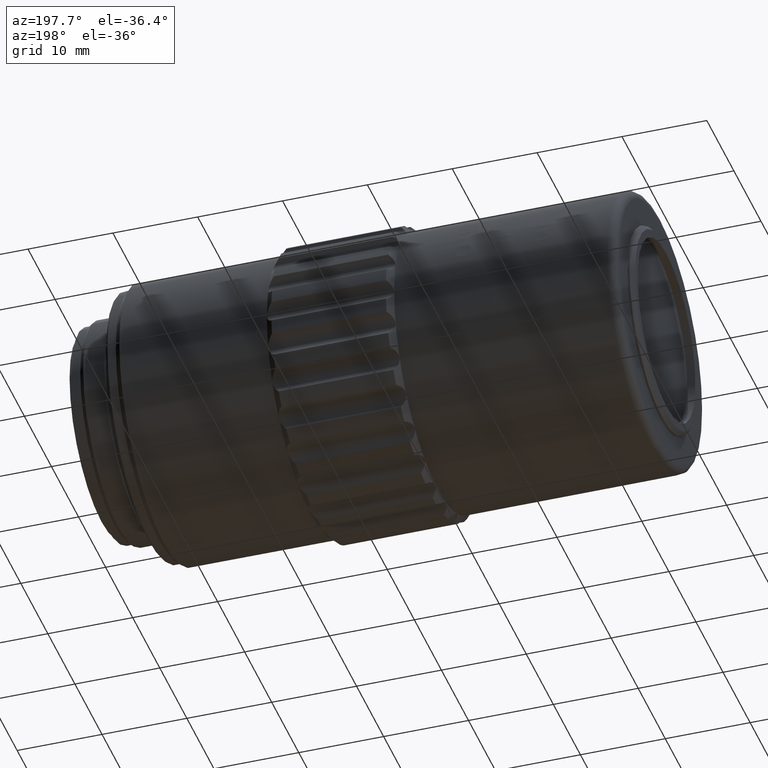
[diagram: clean part render]
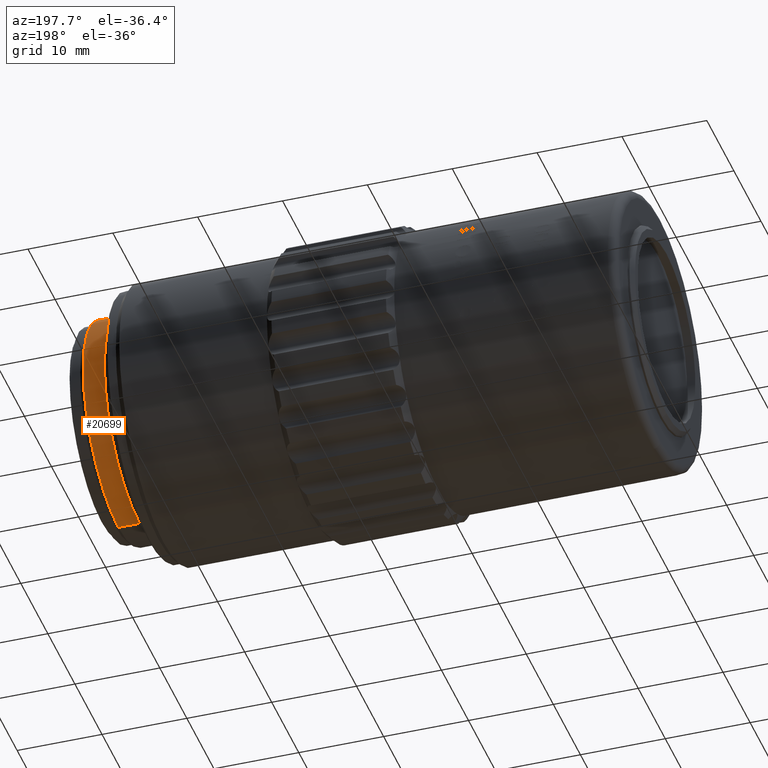
[diagram: same view with one face highlighted and labeled with its STEP entity id]
A machine part, auxiliary view. The second image highlights one B-rep face of the part: STEP entity #20699.
In plain terms, the highlighted cylindrical surface (partial cylindrical patch) has radius 13 mm, axis along (-1, -0, -0).
Its self-contained STEP definition (entity closure, byte-faithful):
#733 = EDGE_CURVE ( 'NONE', #20963, #16647, #30810, .T. ) ;
#3682 = CARTESIAN_POINT ( 'NONE',  ( 95.99999999999998579, 0.000000000000000000, 0.000000000000000000 ) ) ;
#4154 = AXIS2_PLACEMENT_3D ( 'NONE', #3682, #31346, #14051 ) ;
#5108 = DIRECTION ( 'NONE',  ( -1.000000000000000000, -0.000000000000000000, -0.000000000000000000 ) ) ;
#5391 = DIRECTION ( 'NONE',  ( 0.000000000000000000, 0.000000000000000000, 1.000000000000000000 ) ) ;
#6008 = ORIENTED_EDGE ( 'NONE', *, *, #30087, .F. ) ;
#6519 = AXIS2_PLACEMENT_3D ( 'NONE', #6874, #19565, #5391 ) ;
#6630 = EDGE_LOOP ( 'NONE', ( #7456, #22422, #6008, #26913 ) ) ;
#6874 = CARTESIAN_POINT ( 'NONE',  ( 98.49999999999997158, 0.000000000000000000, 0.000000000000000000 ) ) ;
#7456 = ORIENTED_EDGE ( 'NONE', *, *, #26126, .T. ) ;
#7638 = DIRECTION ( 'NONE',  ( -1.000000000000000000, -0.000000000000000000, -0.000000000000000000 ) ) ;
#7923 = CARTESIAN_POINT ( 'NONE',  ( 33.89999999999999858, 1.592040838891557715E-15, -12.99999999999998934 ) ) ;
#8432 = EDGE_CURVE ( 'NONE', #18081, #17729, #12743, .T. ) ;
#9153 = CIRCLE ( 'NONE', #6519, 12.99999999999998934 ) ;
#9442 = CIRCLE ( 'NONE', #4154, 12.99999999999998934 ) ;
#9940 = CARTESIAN_POINT ( 'NONE',  ( 33.89999999999999858, 0.000000000000000000, 12.99999999999998934 ) ) ;
#10001 = AXIS2_PLACEMENT_3D ( 'NONE', #22988, #21002, #25950 ) ;
#12420 = CARTESIAN_POINT ( 'NONE',  ( 95.99999999999998579, 0.000000000000000000, 12.99999999999998934 ) ) ;
#12427 = VECTOR ( 'NONE', #5108, 1000.000000000000000 ) ;
#12660 = CARTESIAN_POINT ( 'NONE',  ( 95.99999999999998579, 1.592040838891557715E-15, -12.99999999999998934 ) ) ;
#12743 = LINE ( 'NONE', #9940, #16678 ) ;
#14051 = DIRECTION ( 'NONE',  ( 0.000000000000000000, 0.000000000000000000, 1.000000000000000000 ) ) ;
#16647 = VERTEX_POINT ( 'NONE', #12660 ) ;
#16678 = VECTOR ( 'NONE', #7638, 1000.000000000000000 ) ;
#17729 = VERTEX_POINT ( 'NONE', #12420 ) ;
#18081 = VERTEX_POINT ( 'NONE', #24559 ) ;
#18378 = FACE_OUTER_BOUND ( 'NONE', #6630, .T. ) ;
#19169 = CARTESIAN_POINT ( 'NONE',  ( 98.49999999999997158, 1.592040838891557715E-15, -12.99999999999998934 ) ) ;
#19565 = DIRECTION ( 'NONE',  ( -1.000000000000000000, -0.000000000000000000, -0.000000000000000000 ) ) ;
#20699 = ADVANCED_FACE ( 'NONE', ( #18378 ), #20842, .T. ) ;
#20842 = CYLINDRICAL_SURFACE ( 'NONE', #10001, 12.99999999999998934 ) ;
#20963 = VERTEX_POINT ( 'NONE', #19169 ) ;
#21002 = DIRECTION ( 'NONE',  ( -1.000000000000000000, -0.000000000000000000, -0.000000000000000000 ) ) ;
#22422 = ORIENTED_EDGE ( 'NONE', *, *, #733, .T. ) ;
#22988 = CARTESIAN_POINT ( 'NONE',  ( 33.89999999999999858, 0.000000000000000000, 0.000000000000000000 ) ) ;
#24559 = CARTESIAN_POINT ( 'NONE',  ( 98.49999999999997158, 0.000000000000000000, 12.99999999999998934 ) ) ;
#25950 = DIRECTION ( 'NONE',  ( 0.000000000000000000, 0.000000000000000000, 1.000000000000000000 ) ) ;
#26126 = EDGE_CURVE ( 'NONE', #18081, #20963, #9153, .T. ) ;
#26913 = ORIENTED_EDGE ( 'NONE', *, *, #8432, .F. ) ;
#30087 = EDGE_CURVE ( 'NONE', #17729, #16647, #9442, .T. ) ;
#30810 = LINE ( 'NONE', #7923, #12427 ) ;
#31346 = DIRECTION ( 'NONE',  ( -1.000000000000000000, -0.000000000000000000, -0.000000000000000000 ) ) ;